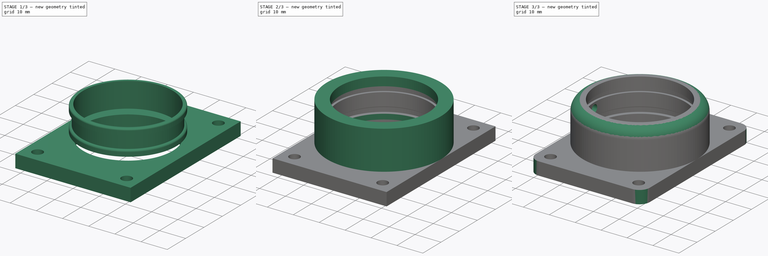
[diagram: build sequence overview — one tinted view per stage of 3, left to right]
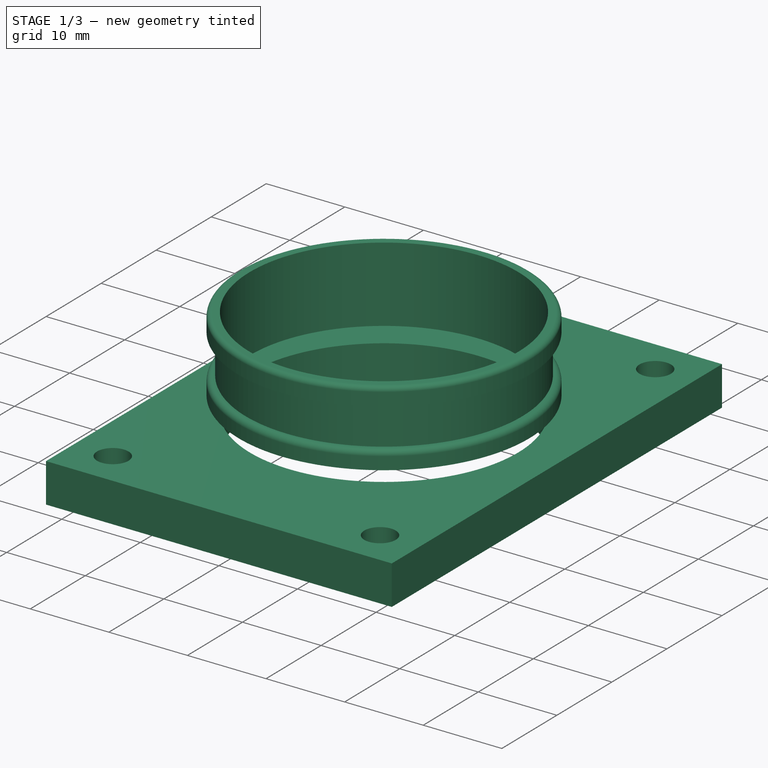
[diagram: stage 1 of 3 — iso view after this stage's code; geometry added in this stage tinted green]
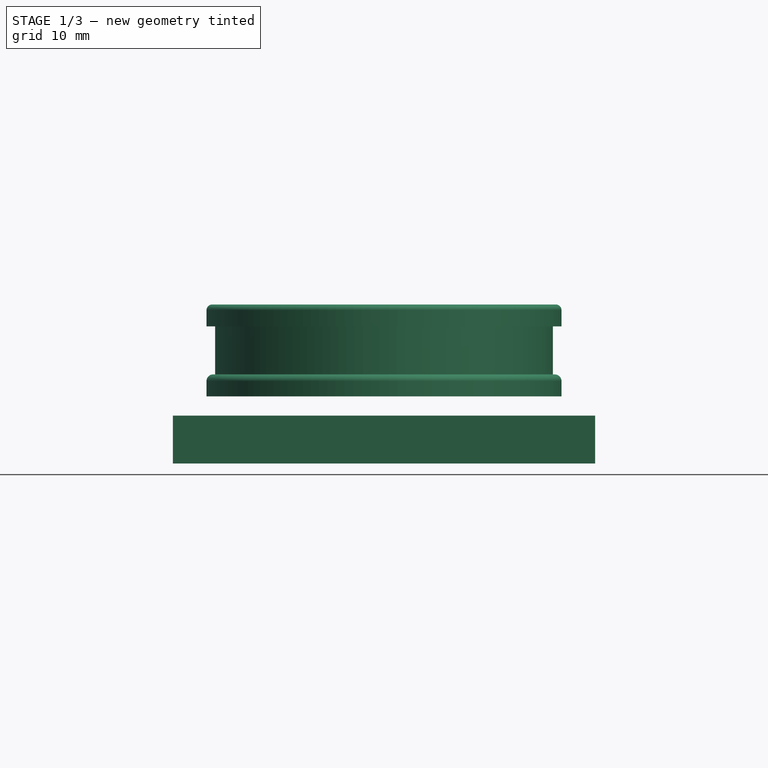
[diagram: stage 1 of 3 — front view after this stage's code; geometry added in this stage tinted green]
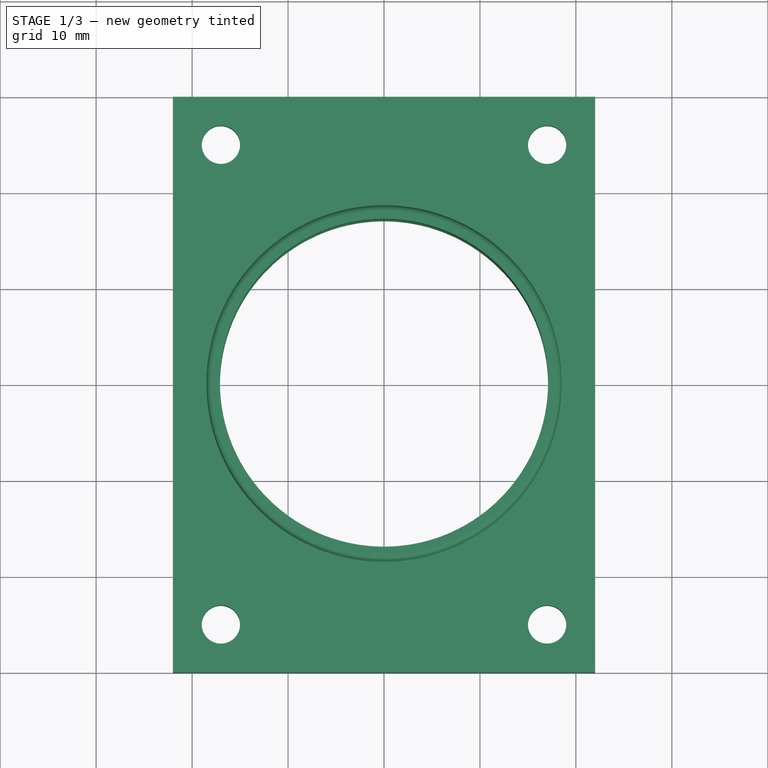
[diagram: stage 1 of 3 — top view after this stage's code; geometry added in this stage tinted green]
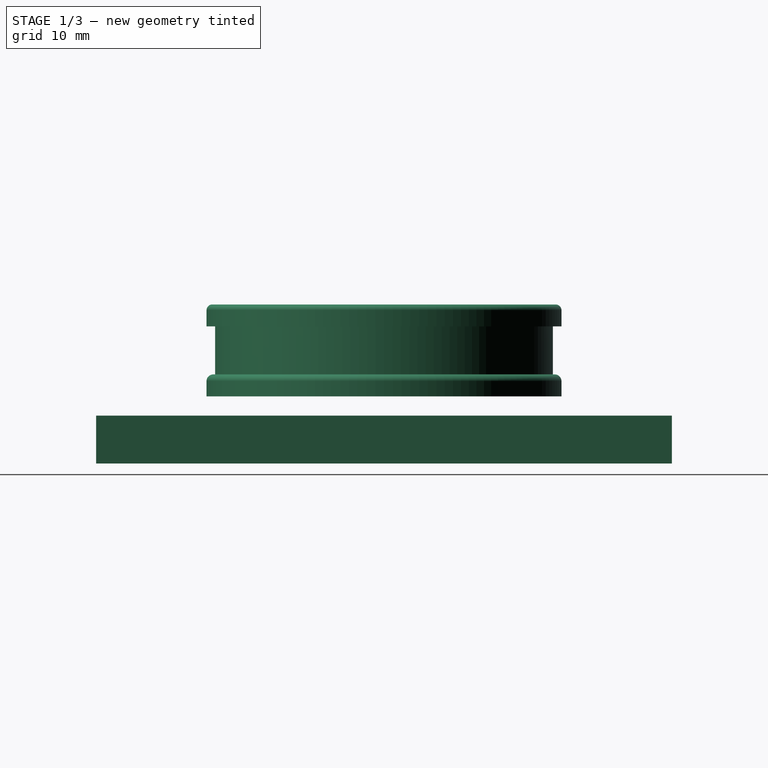
[diagram: stage 1 of 3 — right view after this stage's code; geometry added in this stage tinted green]
FCSTD DOCUMENT  (FreeCAD 0.14R3700 (Git))
Label: axis_bushing
License: CC-BY 3.0
LicenseURL: http://creativecommons.org/licenses/by/3.0/
objects: Sketcher::SketchObject×4, PartDesign::Pad×2, PartDesign::Revolution×1, Part::Cut×1, PartDesign::Pocket×1, Part::Fillet×1
note: 14 computed .brp shape members not serialized (recipe doc carries the construction recipe); baked Part::Feature solids carry a one-line shape summary decoded from their .brp

FEATURE [Sketcher::SketchObject] Sketch  label="backPlateSk"
  sketch-geometry (9):
    g0: LineSegment StartX=-22 StartY=30 StartZ=0 EndX=22 EndY=30 EndZ=0
    g1: LineSegment StartX=22 StartY=30 StartZ=0 EndX=22 EndY=-30 EndZ=0
    g2: LineSegment StartX=-22 StartY=-30 StartZ=0 EndX=-22 EndY=30 EndZ=0
    g3: Circle CenterX=0 CenterY=0 CenterZ=0 NormalX=0 NormalY=0 NormalZ=1 Radius=17.1
    g4: Circle CenterX=-17 CenterY=25 CenterZ=0 NormalX=0 NormalY=0 NormalZ=1 Radius=2
    g5: Circle CenterX=17 CenterY=25 CenterZ=0 NormalX=0 NormalY=0 NormalZ=1 Radius=2
    g6: Circle CenterX=-17 CenterY=-25 CenterZ=0 NormalX=0 NormalY=0 NormalZ=1 Radius=2
    g7: Circle CenterX=17 CenterY=-25 CenterZ=0 NormalX=0 NormalY=0 NormalZ=1 Radius=2
    g8: LineSegment StartX=-22 StartY=-30 StartZ=0 EndX=22 EndY=-30 EndZ=0
  constraints (26):
    c: Horizontal(g0)
    c: Coincident(g0,g1)
    c: Vertical(g1)
    c: Coincident(g2,g0)
    c: Vertical(g2)
    c: Coincident(g3,g-1)
    c: Radius(g3) = 17.1
    c: Equal(g4,g5)
    c: Equal(g5,g6)
    c: Equal(g6,g7)
    c: Radius(g4) = 2
    c: DistanceY(g-1,g0) = 30
    c: DistanceY(g-1,g2) = -30
    c: Coincident(g8,g2)
    c: Coincident(g8,g1)
    c: Horizontal(g8)
    c: DistanceX(g7,g1) = 5
    c: DistanceX(g6,g2) = -5
    c: DistanceX(g0,g4) = 5
    c: DistanceX(g5,g0) = 5
    c: DistanceY(g5,g0) = 5
    c: DistanceY(g4,g0) = 5
    c: DistanceY(g7,g1) = -5
    c: DistanceY(g2,g6) = 5
    c: DistanceX(g-1,g0) = -22
    c: DistanceX(g-1,g0) = 22
FEATURE [PartDesign::Pad] Pad  label="backPlate"
  Length = 5
  Length2 = 5
  Sketch = -> Sketch
  Type = 0
FEATURE [Sketcher::SketchObject] Sketch003  label="ORingRimSk"
  Placement = pos=(0,0,0) rot=(1,0,0;1.5708rad)
  sketch-geometry (10):
    g0: LineSegment StartX=18.5 StartY=8.59 StartZ=0 EndX=18.5 EndY=7 EndZ=0
    g1: LineSegment StartX=18.5 StartY=7 StartZ=0 EndX=17.1 EndY=7 EndZ=0
    g2: LineSegment StartX=17.1 StartY=16.58 StartZ=0 EndX=17.1 EndY=7 EndZ=0
    g3: LineSegment StartX=17.8 StartY=9.29 StartZ=0 EndX=17.6 EndY=9.29 EndZ=0
    g4: LineSegment StartX=17.6 StartY=9.29 StartZ=0 EndX=17.6 EndY=14.29 EndZ=0
    g5: LineSegment StartX=17.6 StartY=14.29 StartZ=0 EndX=18.5 EndY=14.29 EndZ=0
    g6: LineSegment StartX=18.5 StartY=14.29 StartZ=0 EndX=18.5 EndY=15.98 EndZ=0
    g7: LineSegment StartX=17.9 StartY=16.58 StartZ=0 EndX=17.1 EndY=16.58 EndZ=0
    g8: ArcOfCircle CenterX=17.9 CenterY=15.98 CenterZ=0 NormalX=0 NormalY=0 NormalZ=1 Radius=0.6 StartAngle=0 EndAngle=1.5708
    g9: ArcOfCircle CenterX=17.8 CenterY=8.59 CenterZ=0 NormalX=0 NormalY=0 NormalZ=1 Radius=0.7 StartAngle=0 EndAngle=1.5708
  constraints (28):
    c: Vertical(g0)
    c: Coincident(g0,g1)
    c: Coincident(g2,g1)
    c: Vertical(g2)
    c: DistanceX(g-1,g1) = 17.1
    c: DistanceY(g-1,g1) = 7
    c: Horizontal(g1)
    c: Horizontal(g3)
    c: DistanceX(g2,g3) = 0.5
    c: Coincident(g3,g4)
    c: Vertical(g4)
    c: Coincident(g4,g5)
    c: Horizontal(g5)
    c: Coincident(g5,g6)
    c: Vertical(g6)
    c: Horizontal(g7)
    c: Coincident(g2,g7)
    c: DistanceY(g4) = 5
    c: Tangent(g6,g8)
    c: Tangent(g7,g8)
    c: DistanceY(g5,g7) = 2.29
    c: DistanceY(g6,g7) = 0.6
    c: DistanceX(g-1,g0) = 18.5
    c: Tangent(g3,g9)
    c: Tangent(g0,g9)
    c: DistanceY(g0,g3) = 2.29
    c: DistanceY(g3,g0) = -0.7
    c: DistanceX(g-1,g5) = 18.5
FEATURE [PartDesign::Revolution] Revolution  label="ORingRim"
  Angle = 360
  Axis = (0,0,1)
  Base = (0,0,0)
  Placement = pos=(0,0,0) rot=(1,0,0;1.5708rad)
  ReferenceAxis = -> Sketch003 [V_Axis]
  Reversed = true
  Sketch = -> Sketch003
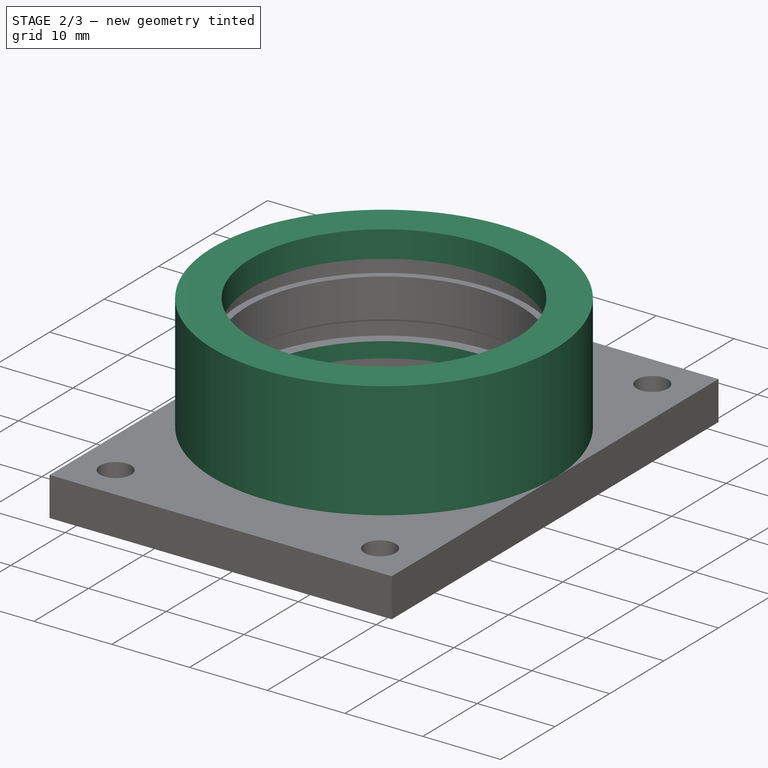
[diagram: stage 2 of 3 — iso view after this stage's code; geometry added in this stage tinted green]
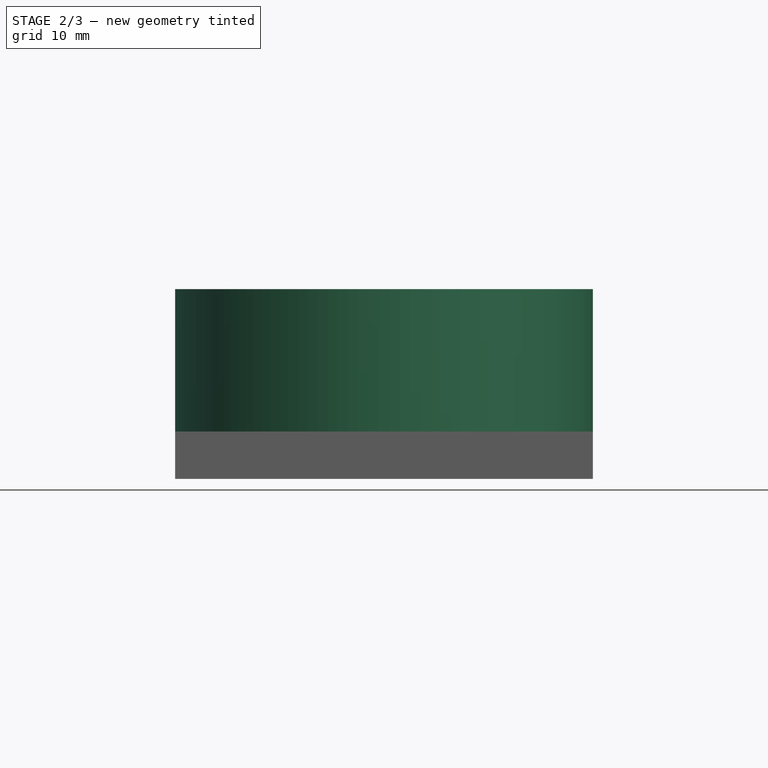
[diagram: stage 2 of 3 — front view after this stage's code; geometry added in this stage tinted green]
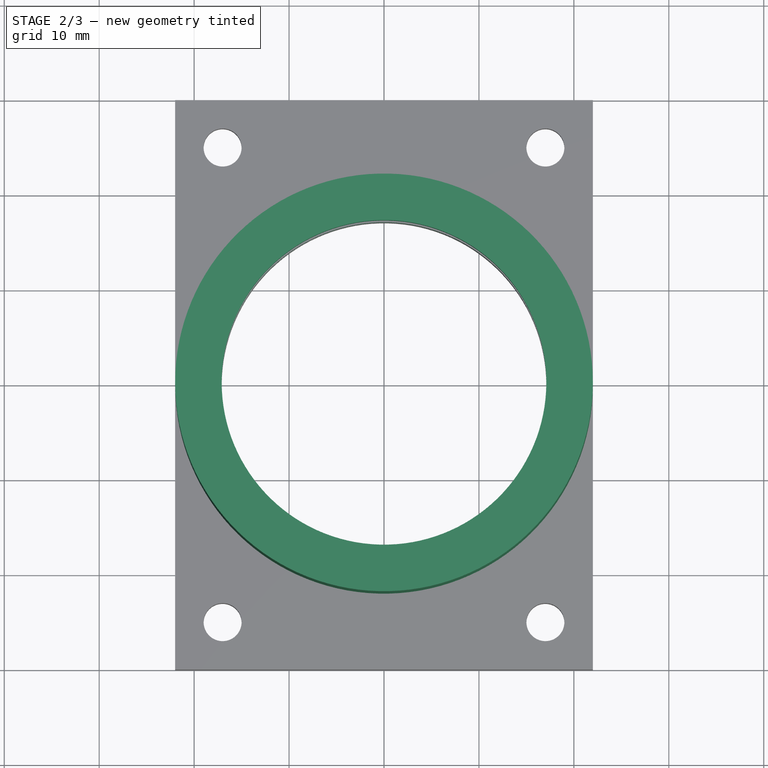
[diagram: stage 2 of 3 — top view after this stage's code; geometry added in this stage tinted green]
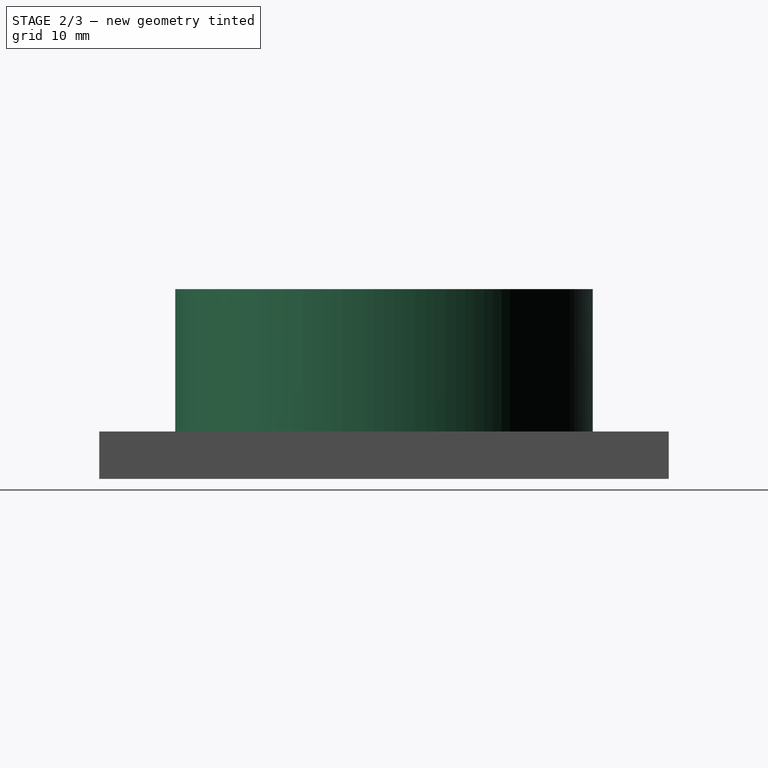
[diagram: stage 2 of 3 — right view after this stage's code; geometry added in this stage tinted green]
FEATURE [Sketcher::SketchObject] Sketch001  label="frondCircleSk"
  Placement = pos=(0,0,5) rot=(0,0,1;0rad)
  Support = -> Pad [Face11]
  sketch-geometry (2):
    g0: Circle CenterX=0 CenterY=0 CenterZ=0 NormalX=0 NormalY=0 NormalZ=1 Radius=22
    g1: Circle CenterX=0 CenterY=0 CenterZ=0 NormalX=0 NormalY=0 NormalZ=1 Radius=17.1
  constraints (4):
    c: Coincident(g0,g-1)
    c: Radius(g0) = 22
    c: Coincident(g1,g-1)
    c: Radius(g1) = 17.1
FEATURE [PartDesign::Pad] Pad001  label="frondCircle"
  Length = 15
  Length2 = 5
  Sketch = -> Sketch001
  Type = 0
FEATURE [Part::Cut] Cut  label="frondExtrusion"
  Base = -> Pad001
  Tool = -> Revolution
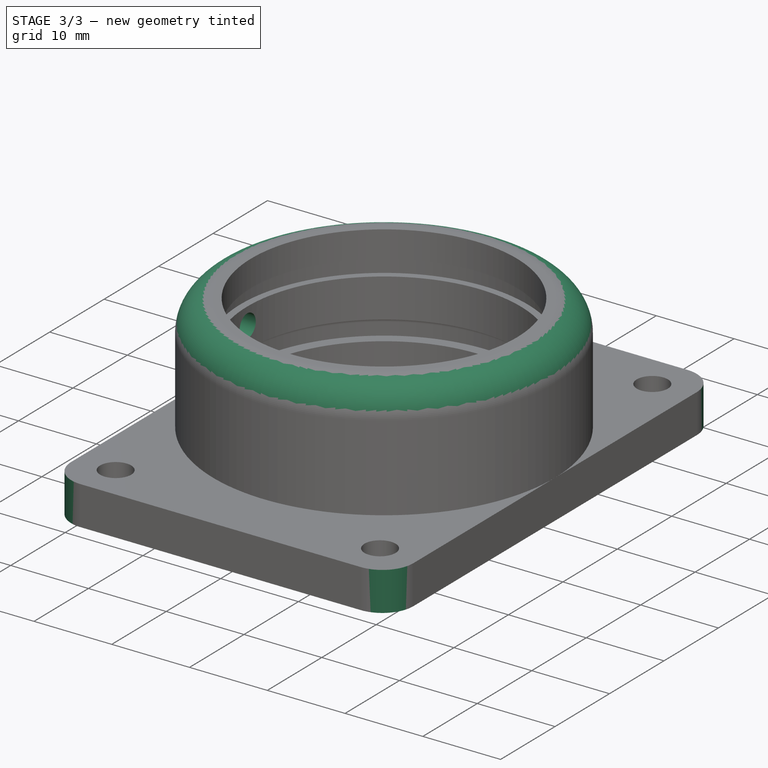
[diagram: stage 3 of 3 — iso view after this stage's code; geometry added in this stage tinted green]
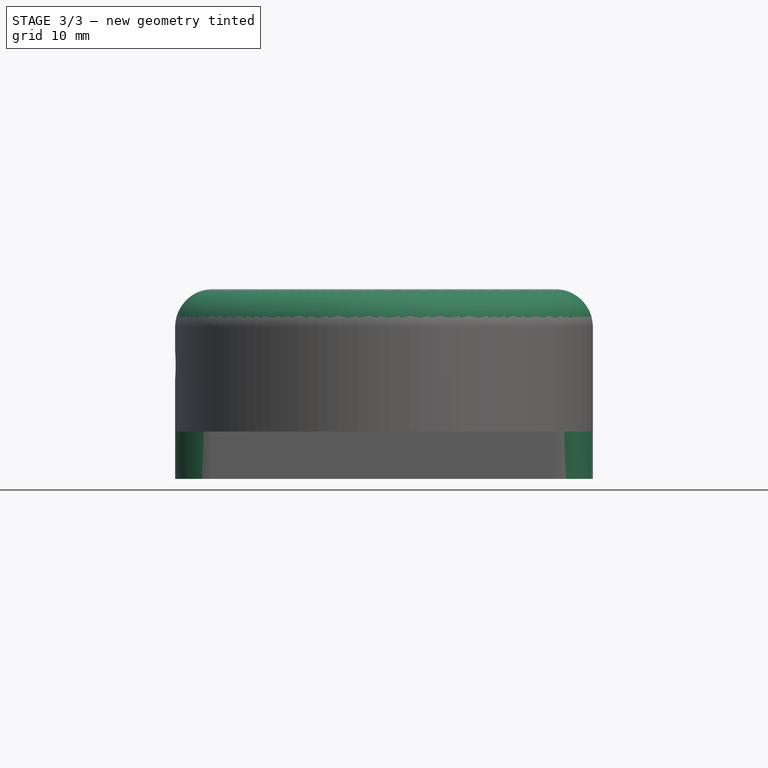
[diagram: stage 3 of 3 — front view after this stage's code; geometry added in this stage tinted green]
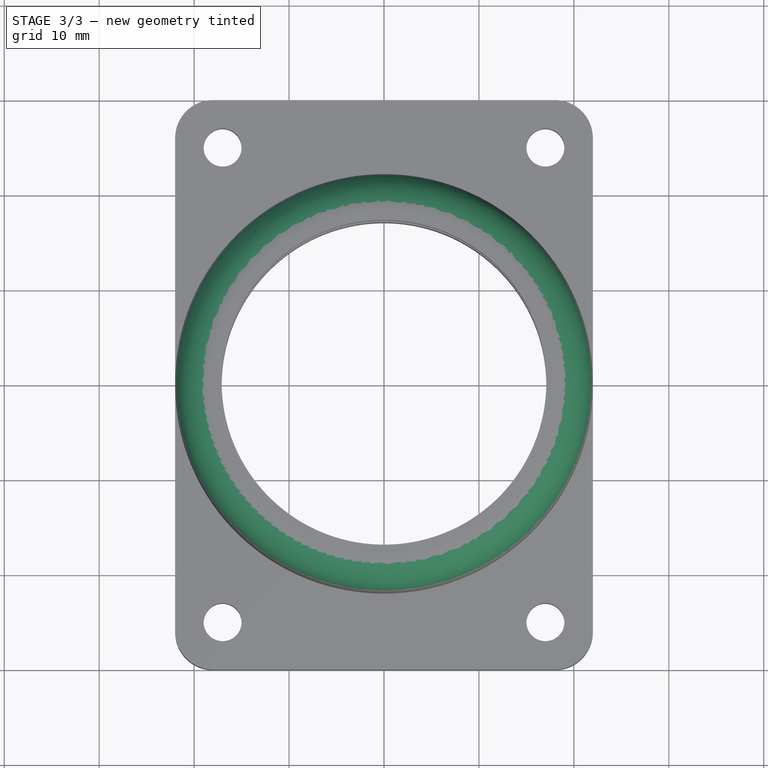
[diagram: stage 3 of 3 — top view after this stage's code; geometry added in this stage tinted green]
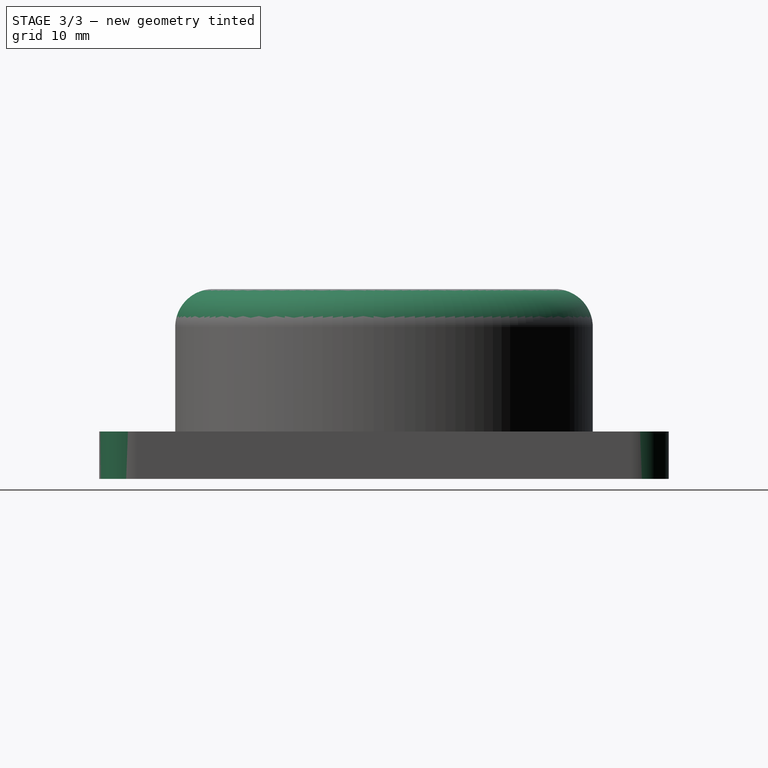
[diagram: stage 3 of 3 — right view after this stage's code; geometry added in this stage tinted green]
FEATURE [Sketcher::SketchObject] Sketch004
  Placement = pos=(-22,0,0) rot=(0.57735,-0.57735,-0.57735;2.0944rad)
  Support = -> Cut [Face2]
  sketch-geometry (1):
    g0: Circle CenterX=0 CenterY=12 CenterZ=0 NormalX=0 NormalY=0 NormalZ=1 Radius=1.5
  constraints (3):
    c: DistanceY(g-1,g0) = 12
    c: PointOnObject(g0,g-2)
    c: Radius(g0) = 1.5
FEATURE [PartDesign::Pocket] Pocket
  Length = 5
  Sketch = -> Sketch004
  Type = 2
FEATURE [Part::Fillet] Fillet
  Base = -> Pocket
  Edges = 5 edges r=4: [Edge1,Edge2,Edge5,Edge11,Edge33]
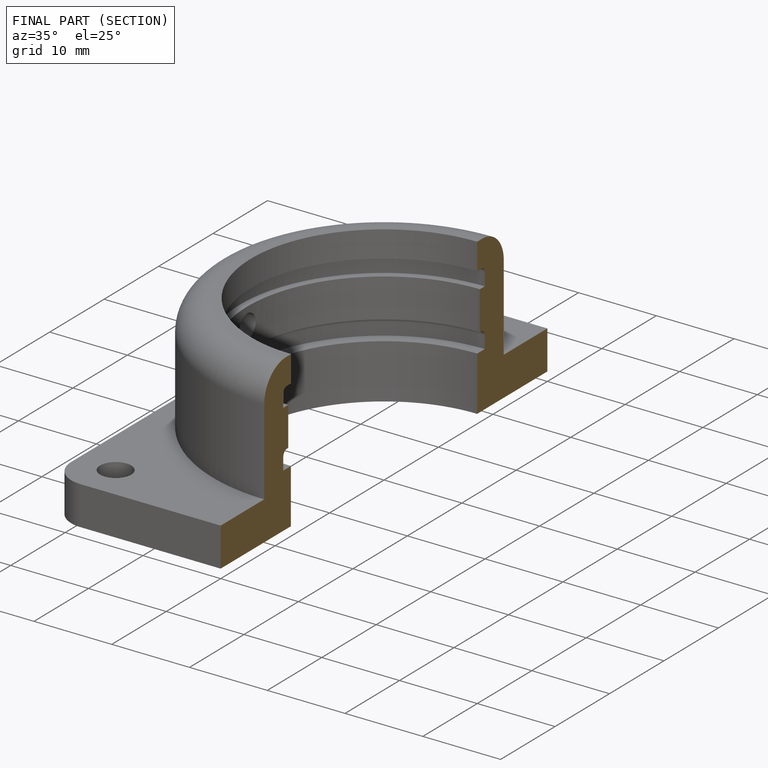
[diagram: finished part — half-section view (interior)]
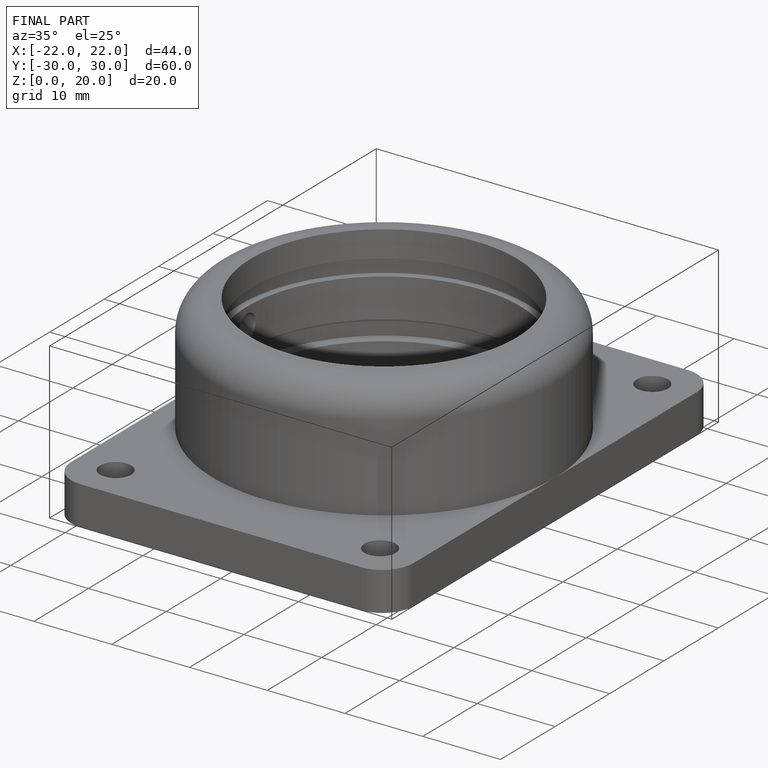
[diagram: finished part — iso view with bounding-box wireframe]
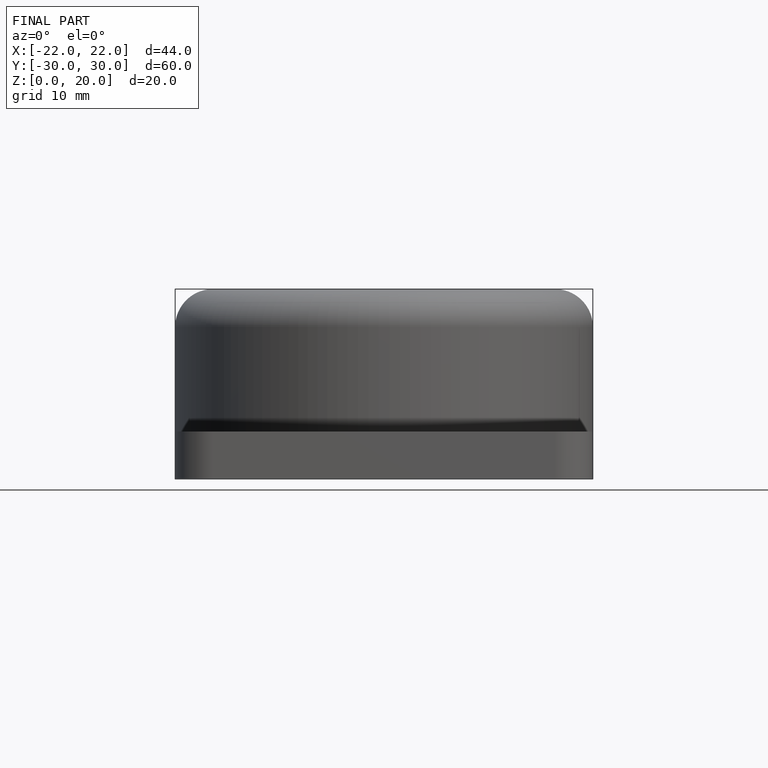
[diagram: finished part — front view with bounding-box wireframe]
